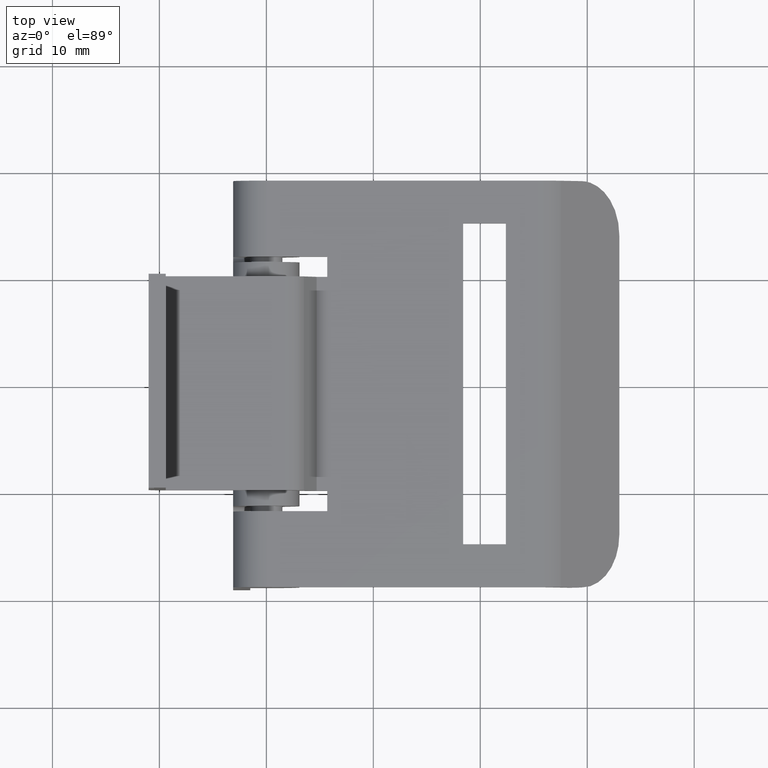
[diagram: clean part render]
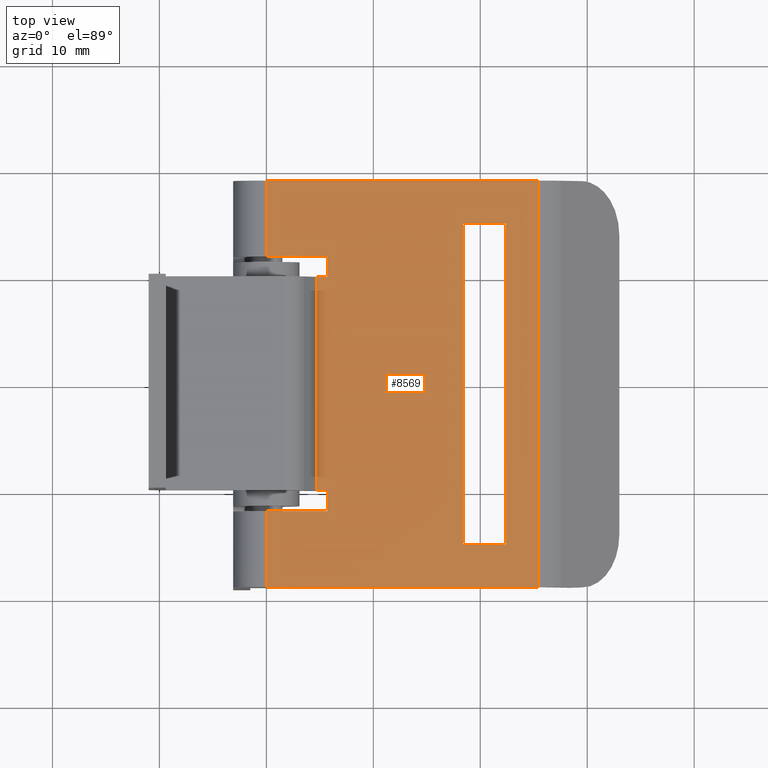
[diagram: same view with one face highlighted and labeled with its STEP entity id]
A machine part, top view. The second image highlights one B-rep face of the part: STEP entity #8569.
In plain terms, the highlighted face is a freeform B-spline surface patch.
Its self-contained STEP definition (entity closure, byte-faithful):
#7317=CARTESIAN_POINT('',(18.399994000000099,15.0,3.099990999999790));
#7318=VERTEX_POINT('',#7317);
#7324=CARTESIAN_POINT('',(18.399994000000099,-15.0,3.099990999999790));
#7325=VERTEX_POINT('',#7324);
#7326=CARTESIAN_POINT('',(18.399994000000099,15.0,3.099990999999790));
#7327=CARTESIAN_POINT('',(18.399994000000099,-15.0,3.099990999999790));
#7328=QUASI_UNIFORM_CURVE('',1,(#7326,#7327),.UNSPECIFIED.,.F.,.U.);
#7329=EDGE_CURVE('',#7318,#7325,#7328,.T.);
#7353=CARTESIAN_POINT('',(22.399994000000099,15.0,3.099990999999790));
#7354=VERTEX_POINT('',#7353);
#7360=CARTESIAN_POINT('',(22.399994000000099,15.0,3.099990999999790));
#7361=CARTESIAN_POINT('',(18.399994000000099,15.0,3.099990999999790));
#7362=QUASI_UNIFORM_CURVE('',1,(#7360,#7361),.UNSPECIFIED.,.F.,.U.);
#7363=EDGE_CURVE('',#7354,#7318,#7362,.T.);
#7381=CARTESIAN_POINT('',(22.399994000000099,-15.0,3.099990999999790));
#7382=VERTEX_POINT('',#7381);
#7388=CARTESIAN_POINT('',(22.399994000000099,-15.0,3.099990999999790));
#7389=CARTESIAN_POINT('',(22.399994000000099,15.0,3.099990999999790));
#7390=QUASI_UNIFORM_CURVE('',1,(#7388,#7389),.UNSPECIFIED.,.F.,.U.);
#7391=EDGE_CURVE('',#7382,#7354,#7390,.T.);
#7408=CARTESIAN_POINT('',(18.399994000000099,-15.0,3.099990999999790));
#7409=CARTESIAN_POINT('',(22.399994000000099,-15.0,3.099990999999790));
#7410=QUASI_UNIFORM_CURVE('',1,(#7408,#7409),.UNSPECIFIED.,.F.,.U.);
#7411=EDGE_CURVE('',#7325,#7382,#7410,.T.);
#7627=CARTESIAN_POINT('',(5.699997000000000,-10.0,3.099990999999790));
#7628=VERTEX_POINT('',#7627);
#7634=CARTESIAN_POINT('',(4.699982000000000,-10.0,3.099990999999790));
#7635=VERTEX_POINT('',#7634);
#7636=CARTESIAN_POINT('',(5.699997000000000,-10.0,3.099990999999790));
#7637=CARTESIAN_POINT('',(4.699982000000000,-10.0,3.099990999999790));
#7638=QUASI_UNIFORM_CURVE('',1,(#7636,#7637),.UNSPECIFIED.,.F.,.U.);
#7639=EDGE_CURVE('',#7628,#7635,#7638,.T.);
#7859=CARTESIAN_POINT('',(4.699982000000000,10.0,3.099990999999790));
#7860=VERTEX_POINT('',#7859);
#7866=CARTESIAN_POINT('',(5.699997000000000,10.0,3.099990999999790));
#7867=VERTEX_POINT('',#7866);
#7868=CARTESIAN_POINT('',(5.699997000000000,10.0,3.099990999999790));
#7869=CARTESIAN_POINT('',(4.699982000000000,10.0,3.099990999999790));
#7870=QUASI_UNIFORM_CURVE('',1,(#7868,#7869),.UNSPECIFIED.,.F.,.U.);
#7871=EDGE_CURVE('',#7867,#7860,#7870,.T.);
#7980=CARTESIAN_POINT('',(4.699982000000000,10.0,3.099990999999790));
#7981=CARTESIAN_POINT('',(4.699982000000000,-10.0,3.099990999999790));
#7982=QUASI_UNIFORM_CURVE('',1,(#7980,#7981),.UNSPECIFIED.,.F.,.U.);
#7983=EDGE_CURVE('',#7860,#7635,#7982,.T.);
#8112=CARTESIAN_POINT('',(5.699997000000000,-11.899994000000079,3.099990999999790));
#8113=VERTEX_POINT('',#8112);
#8114=CARTESIAN_POINT('',(5.699997000000000,-11.899994000000079,3.099990999999790));
#8115=CARTESIAN_POINT('',(5.699997000000000,-10.0,3.099990999999790));
#8116=QUASI_UNIFORM_CURVE('',1,(#8114,#8115),.UNSPECIFIED.,.F.,.U.);
#8117=EDGE_CURVE('',#8113,#7628,#8116,.T.);
#8170=CARTESIAN_POINT('',(-0.000000162315623,-11.899994000000101,3.099990999999800));
#8171=VERTEX_POINT('',#8170);
#8191=CARTESIAN_POINT('',(-0.000000162315623,-11.899994000000101,3.099990999999800));
#8192=CARTESIAN_POINT('',(5.699997000000000,-11.899994000000079,3.099990999999790));
#8193=QUASI_UNIFORM_CURVE('',1,(#8191,#8192),.UNSPECIFIED.,.F.,.U.);
#8194=EDGE_CURVE('',#8171,#8113,#8193,.T.);
#8212=CARTESIAN_POINT('',(5.699997000000000,11.899994000000000,3.099990999999800));
#8213=VERTEX_POINT('',#8212);
#8219=CARTESIAN_POINT('',(-0.000000162315623,11.899994000000000,3.099990999999800));
#8220=VERTEX_POINT('',#8219);
#8221=CARTESIAN_POINT('',(5.699997000000000,11.899994000000000,3.099990999999800));
#8222=CARTESIAN_POINT('',(-0.000000162315623,11.899994000000000,3.099990999999800));
#8223=QUASI_UNIFORM_CURVE('',1,(#8221,#8222),.UNSPECIFIED.,.F.,.U.);
#8224=EDGE_CURVE('',#8213,#8220,#8223,.T.);
#8303=CARTESIAN_POINT('',(25.420105000000099,-19.0,3.099990999999790));
#8304=VERTEX_POINT('',#8303);
#8318=CARTESIAN_POINT('',(-0.000000162315623,-19.0,3.099990999999790));
#8319=VERTEX_POINT('',#8318);
#8320=CARTESIAN_POINT('',(-0.000000162315623,-19.0,3.099990999999790));
#8321=CARTESIAN_POINT('',(25.420105000000099,-19.0,3.099990999999790));
#8322=QUASI_UNIFORM_CURVE('',1,(#8320,#8321),.UNSPECIFIED.,.F.,.U.);
#8323=EDGE_CURVE('',#8319,#8304,#8322,.T.);
#8437=CARTESIAN_POINT('',(-0.000000162315623,18.999999999999751,3.099990999999790));
#8438=VERTEX_POINT('',#8437);
#8458=CARTESIAN_POINT('',(25.420105000000099,19.0,3.099990999999790));
#8459=VERTEX_POINT('',#8458);
#8460=CARTESIAN_POINT('',(-0.000000162315623,18.999999999999751,3.099990999999790));
#8461=CARTESIAN_POINT('',(25.420105000000099,19.0,3.099990999999790));
#8462=QUASI_UNIFORM_CURVE('',1,(#8460,#8461),.UNSPECIFIED.,.F.,.U.);
#8463=EDGE_CURVE('',#8438,#8459,#8462,.T.);
#8520=CARTESIAN_POINT('',(25.420105000000099,19.0,3.099990999999790));
#8521=CARTESIAN_POINT('',(25.420105000000099,-19.0,3.099990999999790));
#8522=QUASI_UNIFORM_CURVE('',1,(#8520,#8521),.UNSPECIFIED.,.F.,.U.);
#8523=EDGE_CURVE('',#8459,#8304,#8522,.T.);
#8528=CARTESIAN_POINT('',(26.689839203588679,-20.898099926348621,3.099990999999790));
#8529=CARTESIAN_POINT('',(-1.269735047724548,-20.898099926348621,3.099990999999790));
#8530=CARTESIAN_POINT('',(26.689839203588679,20.898100945588052,3.099990999999790));
#8531=CARTESIAN_POINT('',(-1.269735047724549,20.898100945588052,3.099990999999790));
#8532=B_SPLINE_SURFACE_WITH_KNOTS('',1,1,((#8528,#8530),(#8529,#8531)),.UNSPECIFIED.,.F.,.F.,.U.,(2,2),(2,2),(0.0,27.959574251313231),(0.0,41.796200871936669),.UNSPECIFIED.);
#8533=CARTESIAN_POINT('',(-0.000000162315623,18.999999999999751,3.099990999999790));
#8534=CARTESIAN_POINT('',(-0.000000162315623,16.633331333333171,3.099990999999793));
#8535=CARTESIAN_POINT('',(-0.000000162315623,14.266662666666580,3.099990999999797));
#8536=CARTESIAN_POINT('',(-0.000000162315623,11.899994000000000,3.099990999999800));
#8537=B_SPLINE_CURVE_WITH_KNOTS('',3,(#8533,#8534,#8535,#8536),.UNSPECIFIED.,.F.,.U.,(4,4),(0.030899994000000,0.038000000000000),.UNSPECIFIED.);
#8538=EDGE_CURVE('',#8438,#8220,#8537,.T.);
#8539=ORIENTED_EDGE('',*,*,#8538,.T.);
#8540=ORIENTED_EDGE('',*,*,#8224,.F.);
#8541=CARTESIAN_POINT('',(5.699997000000000,10.0,3.099990999999790));
#8542=CARTESIAN_POINT('',(5.699997000000000,11.899994000000000,3.099990999999800));
#8543=QUASI_UNIFORM_CURVE('',1,(#8541,#8542),.UNSPECIFIED.,.F.,.U.);
#8544=EDGE_CURVE('',#7867,#8213,#8543,.T.);
#8545=ORIENTED_EDGE('',*,*,#8544,.F.);
#8546=ORIENTED_EDGE('',*,*,#7871,.T.);
#8547=ORIENTED_EDGE('',*,*,#7983,.T.);
#8548=ORIENTED_EDGE('',*,*,#7639,.F.);
#8549=ORIENTED_EDGE('',*,*,#8117,.F.);
#8550=ORIENTED_EDGE('',*,*,#8194,.F.);
#8551=CARTESIAN_POINT('',(-0.000000162315623,-11.899994000000101,3.099990999999800));
#8552=CARTESIAN_POINT('',(-0.000000162315623,-14.266662666666731,3.099990999999797));
#8553=CARTESIAN_POINT('',(-0.000000162315623,-16.633331333333370,3.099990999999793));
#8554=CARTESIAN_POINT('',(-0.000000162315623,-19.0,3.099990999999790));
#8555=B_SPLINE_CURVE_WITH_KNOTS('',3,(#8551,#8552,#8553,#8554),.UNSPECIFIED.,.F.,.U.,(4,4),(0.0,0.007100006000000),.UNSPECIFIED.);
#8556=EDGE_CURVE('',#8171,#8319,#8555,.T.);
#8557=ORIENTED_EDGE('',*,*,#8556,.T.);
#8558=ORIENTED_EDGE('',*,*,#8323,.T.);
#8559=ORIENTED_EDGE('',*,*,#8523,.F.);
#8560=ORIENTED_EDGE('',*,*,#8463,.F.);
#8561=EDGE_LOOP('',(#8539,#8540,#8545,#8546,#8547,#8548,#8549,#8550,#8557,#8558,#8559,#8560));
#8562=FACE_OUTER_BOUND('',#8561,.T.);
#8563=ORIENTED_EDGE('',*,*,#7391,.F.);
#8564=ORIENTED_EDGE('',*,*,#7411,.F.);
#8565=ORIENTED_EDGE('',*,*,#7329,.F.);
#8566=ORIENTED_EDGE('',*,*,#7363,.F.);
#8567=EDGE_LOOP('',(#8563,#8564,#8565,#8566));
#8568=FACE_BOUND('',#8567,.T.);
#8569=ADVANCED_FACE('',(#8562,#8568),#8532,.F.);